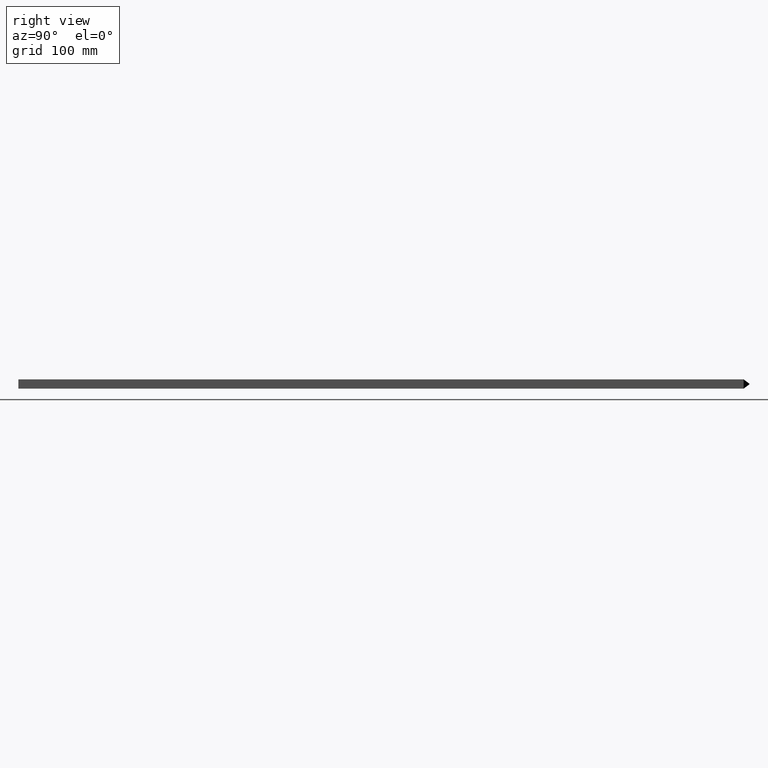
[diagram: clean part render]
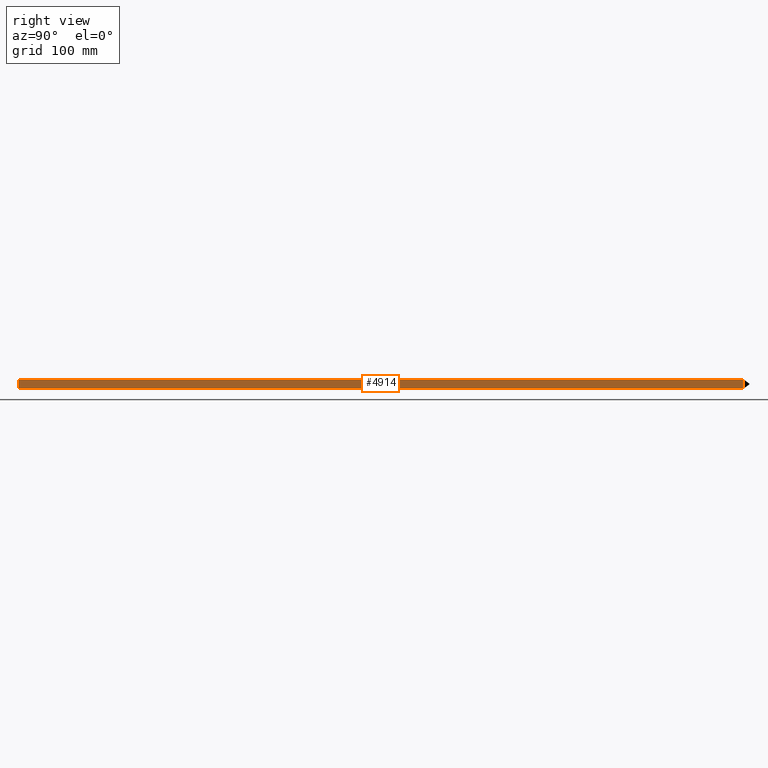
[diagram: same view with one face highlighted and labeled with its STEP entity id]
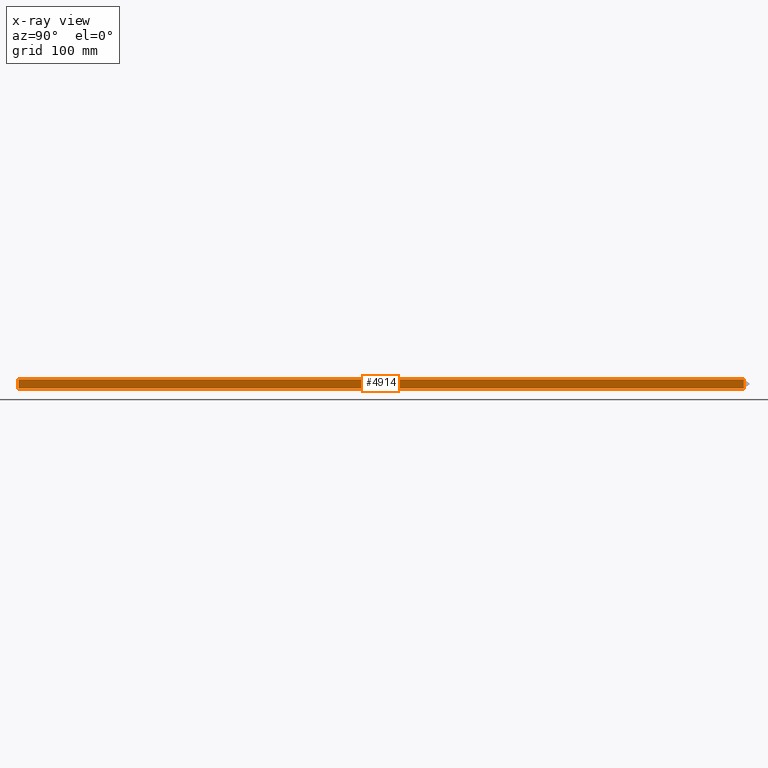
[diagram: x-ray of the same camera — body ghosted, the highlighted face saturated]
A machine part, right view. The second image highlights one B-rep face of the part: STEP entity #4914.
The next image is the same camera in x-ray: the body ghosted, the highlighted face saturated — about 0% of this face is hidden behind the body in this view.
In plain terms, the highlighted planar face has unit normal (-1, 0, 0).
Its self-contained STEP definition (entity closure, byte-faithful):
#182 = PLANE ( 'NONE',  #813 ) ;
#316 = DIRECTION ( 'NONE',  ( -0.000000000000000000, -1.000000000000000000, -0.000000000000000000 ) ) ;
#813 = AXIS2_PLACEMENT_3D ( 'NONE', #7913, #7072, #8761 ) ;
#985 = LINE ( 'NONE', #5263, #1551 ) ;
#1551 = VECTOR ( 'NONE', #8637, 1000.000000000000000 ) ;
#1561 = LINE ( 'NONE', #8077, #5653 ) ;
#1710 = CARTESIAN_POINT ( 'NONE',  ( 6.000000000000059508, 942.1999999999999318, -944.0000000000000000 ) ) ;
#2484 = DIRECTION ( 'NONE',  ( -1.445602896647339410E-16, -0.000000000000000000, -1.000000000000000000 ) ) ;
#2627 = VECTOR ( 'NONE', #2484, 1000.000000000000000 ) ;
#4328 = VERTEX_POINT ( 'NONE', #10314 ) ;
#4417 = FACE_OUTER_BOUND ( 'NONE', #7143, .T. ) ;
#4829 = ORIENTED_EDGE ( 'NONE', *, *, #6445, .F. ) ;
#4914 = ADVANCED_FACE ( 'NONE', ( #4417 ), #182, .F. ) ;
#5210 = DIRECTION ( 'NONE',  ( -0.000000000000000000, -0.000000000000000000, 1.000000000000000000 ) ) ;
#5263 = CARTESIAN_POINT ( 'NONE',  ( 6.000000000000000888, 950.2000000000000455, 5.999999999999999112 ) ) ;
#5653 = VECTOR ( 'NONE', #316, 1000.000000000000000 ) ;
#6445 = EDGE_CURVE ( 'NONE', #8128, #4328, #1561, .T. ) ;
#6945 = LINE ( 'NONE', #10917, #2627 ) ;
#6949 = EDGE_CURVE ( 'NONE', #7277, #10699, #985, .T. ) ;
#7072 = DIRECTION ( 'NONE',  ( -1.000000000000000000, 0.000000000000000000, 1.445602896647339410E-16 ) ) ;
#7143 = EDGE_LOOP ( 'NONE', ( #8436, #7426, #11247, #4829 ) ) ;
#7277 = VERTEX_POINT ( 'NONE', #10984 ) ;
#7426 = ORIENTED_EDGE ( 'NONE', *, *, #6949, .T. ) ;
#7913 = CARTESIAN_POINT ( 'NONE',  ( 5.999999999999999112, 950.2000000000000455, -5.999999999999999112 ) ) ;
#7966 = EDGE_CURVE ( 'NONE', #8128, #7277, #9822, .T. ) ;
#8077 = CARTESIAN_POINT ( 'NONE',  ( 5.999999999999999112, 950.2000000000000455, -5.999999999999999112 ) ) ;
#8128 = VERTEX_POINT ( 'NONE', #9710 ) ;
#8307 = EDGE_CURVE ( 'NONE', #10699, #4328, #6945, .T. ) ;
#8436 = ORIENTED_EDGE ( 'NONE', *, *, #7966, .T. ) ;
#8637 = DIRECTION ( 'NONE',  ( -0.000000000000000000, -1.000000000000000000, -0.000000000000000000 ) ) ;
#8761 = DIRECTION ( 'NONE',  ( 1.445602896647339410E-16, 0.000000000000000000, 1.000000000000000000 ) ) ;
#8824 = CARTESIAN_POINT ( 'NONE',  ( 6.000000000000000888, 0.000000000000000000, 5.999999999999999112 ) ) ;
#8858 = VECTOR ( 'NONE', #5210, 1000.000000000000000 ) ;
#9710 = CARTESIAN_POINT ( 'NONE',  ( 5.999999999999999112, 942.1999999999999318, -5.999999999999999112 ) ) ;
#9822 = LINE ( 'NONE', #1710, #8858 ) ;
#10314 = CARTESIAN_POINT ( 'NONE',  ( 5.999999999999999112, 0.000000000000000000, -5.999999999999999112 ) ) ;
#10699 = VERTEX_POINT ( 'NONE', #8824 ) ;
#10917 = CARTESIAN_POINT ( 'NONE',  ( 5.999999999999999112, 0.000000000000000000, -5.999999999999999112 ) ) ;
#10984 = CARTESIAN_POINT ( 'NONE',  ( 6.000000000000000888, 942.1999999999999318, 5.999999999999999112 ) ) ;
#11247 = ORIENTED_EDGE ( 'NONE', *, *, #8307, .T. ) ;